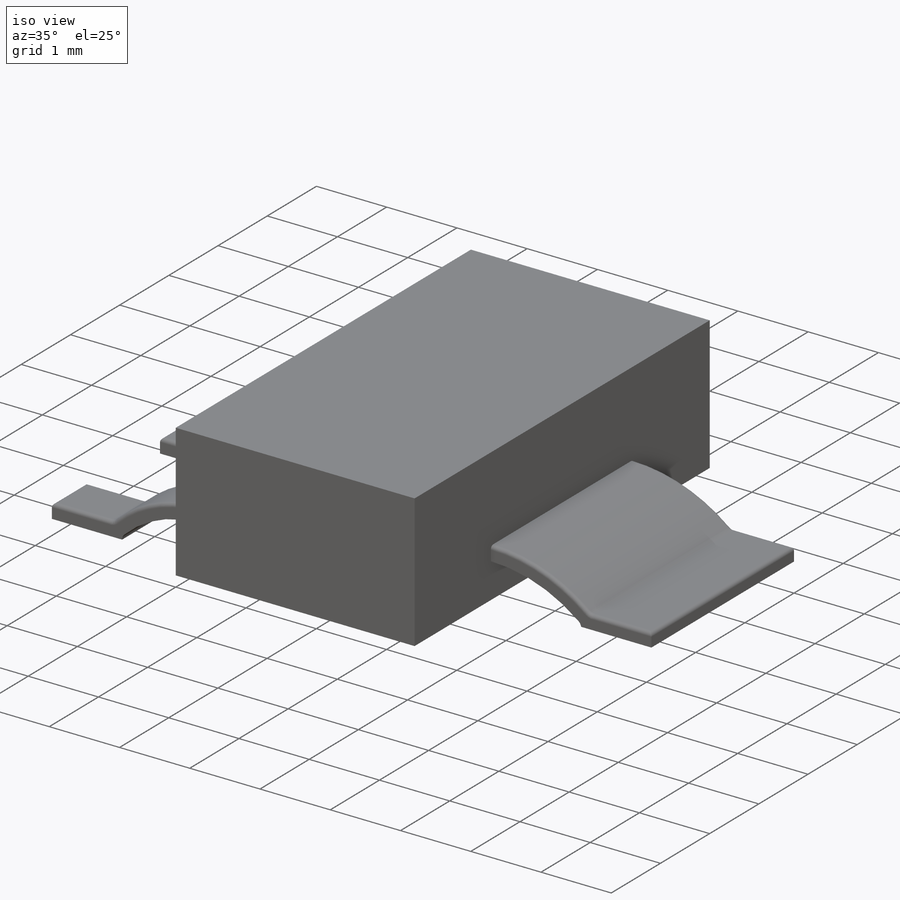
[diagram: iso view]
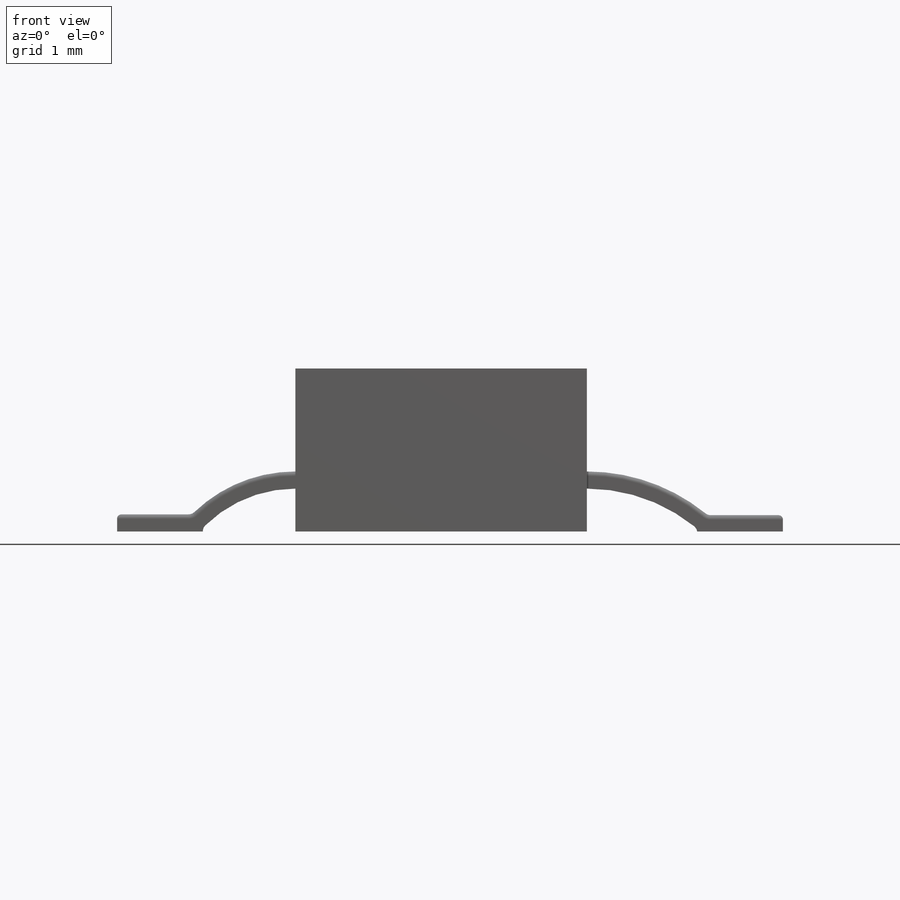
[diagram: front view]
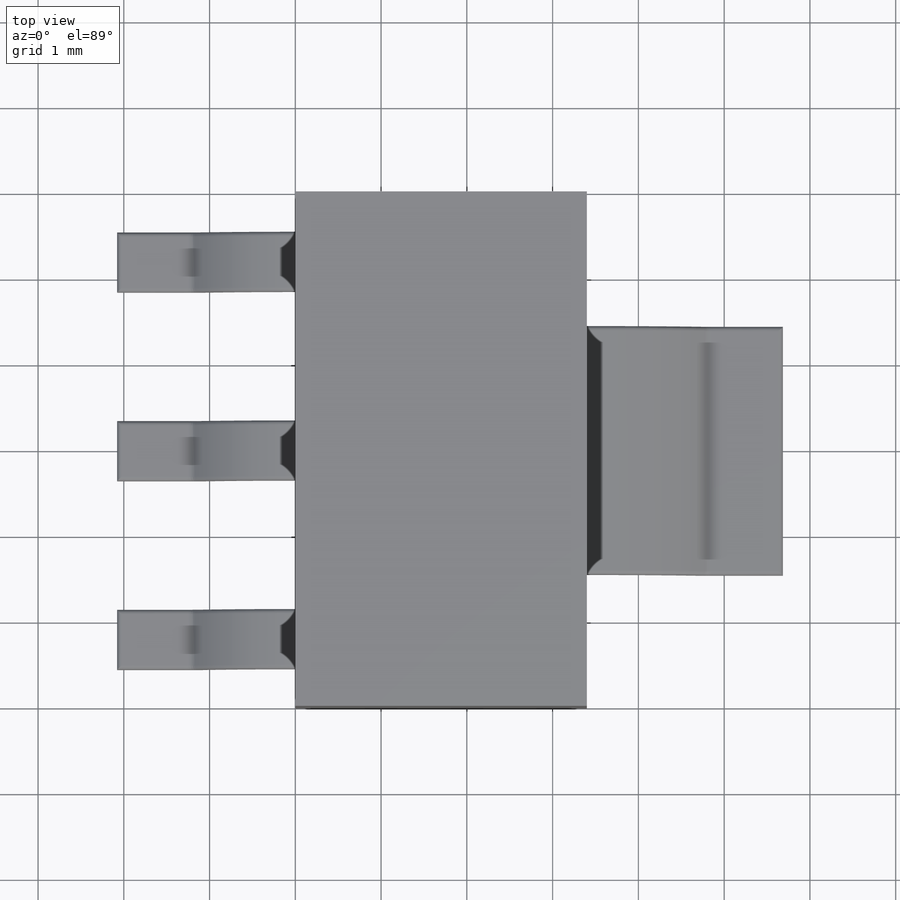
[diagram: top view]
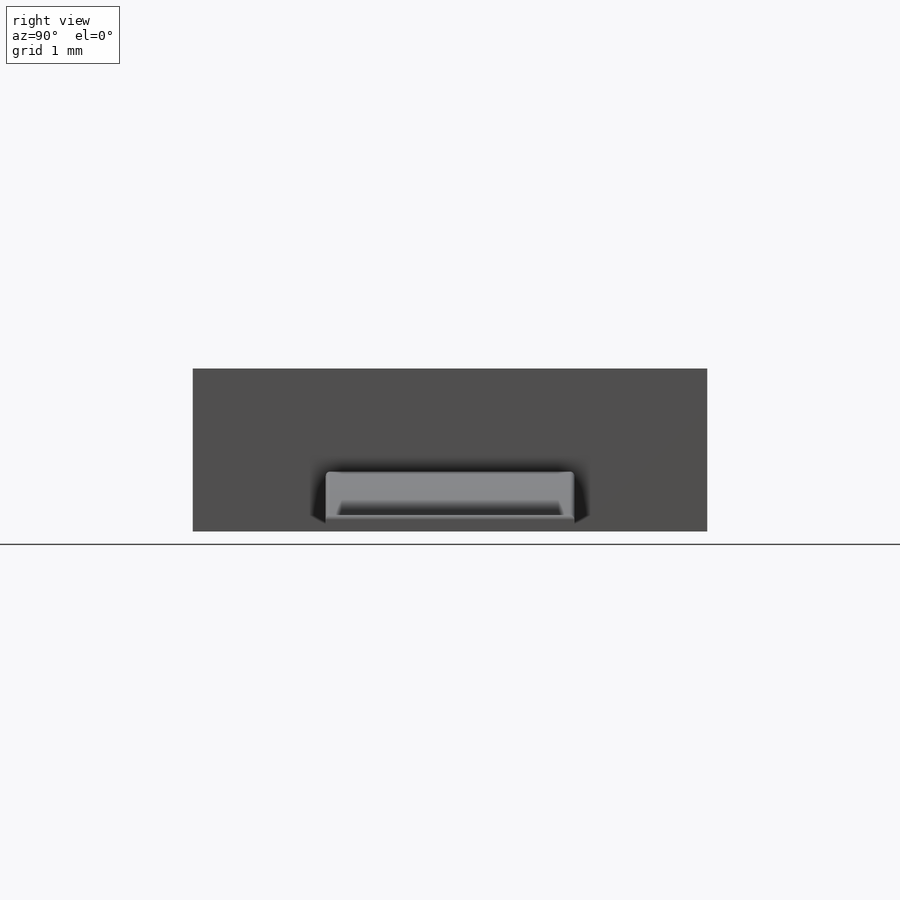
[diagram: right view]
SOLIDWORKS PART (.sldprt)
format: sldprt  version: not decoded by parser v0  size: 333,824 bytes
history: native  units: mm
features: sketch x5, fillet x4, plane x3, extrude x3, revolve x2, material x1 (+10 scaffold rows collapsed)
feature tree (28):
  scaffold x10  (default folders/planes/origin — collapsed)
  material  "Material <not specified>"
  plane  "Plan de face"
  plane  "Plan de dessus"
  plane  "Plan de droite"
  sketch  "Esquisse1"  dims[D1=6.0mm D2=3.4mm]
  extrude  "Boss.-Extru.1"  Depth=1.9mm
  sketch  "Esquisse2"  dims[D1=0.2mm D2=2.9mm D3=2.0mm]
  revolve  "Révolution1"  Angle=40deg
  sketch  "Esquisse4"  dims[D1=2.9mm D2=1.0mm]
  extrude  "Boss.-Extru.2"  Depth=0.19mm
  fillet  "Congé1"  Radius=0.1mm
  fillet  "Congé2"  Radius=0.05mm
  sketch  "Esquisse6"  dims[c1.D2=2.9mm c1.D1=0.5mm c2.D2=0.2mm c2.D3=0.7mm c2.D4=6.0mm c3.D4=90.0deg c4.D4=1.1mm c4.D5=1.1mm c4.D6=1.0mm c4.D1=0.0mm]
  revolve  "Révolution2"  Angle=46deg
  sketch  "Esquisse8"  dims[D1=1.0mm D2=1.0mm D3=1.0mm]
  extrude  "Boss.-Extru.3"  Depth=0.2mm
  fillet  "Congé3"  Radius=0.1mm
  fillet  "Congé4"  Radius=0.05mm
decode coverage: 14 of 14 modeling features carry decoded parameters
note: suppression state not decoded; provenance and decode notes live in map.json
